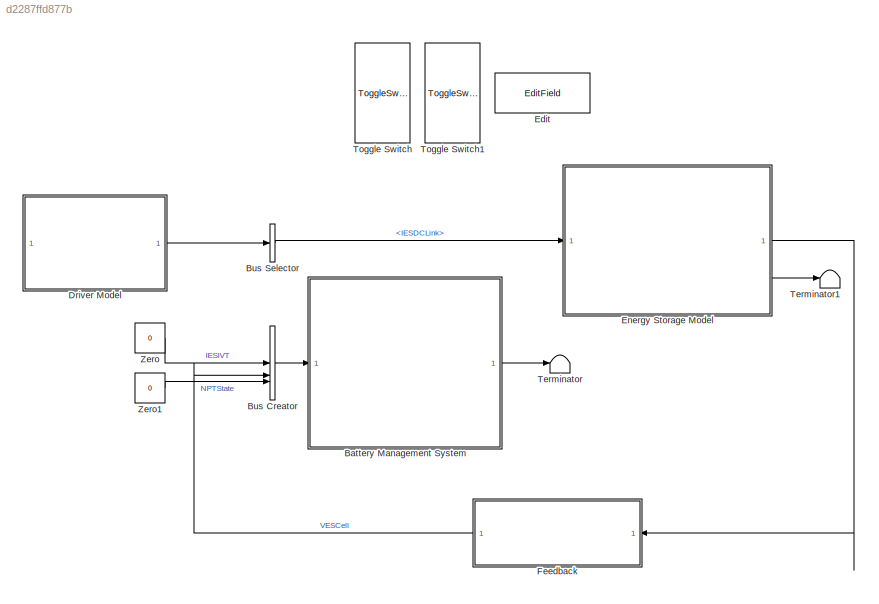
MODEL slx_d2287ffd877b
KIND model
CONFIG AbsTol = auto
CONFIG EnableMultiTasking = off
CONFIG FixedStep = tSimBattMgt
CONFIG MaxStep = auto
CONFIG MinStep = auto
CONFIG RelTol = 1e-3
CONFIG SampleTimeConstraint = Unconstrained
CONFIG SolverName = FixedStepDiscrete
CONFIG StartTime = 0.0
CONFIG StopTime = Inf
BLOCK [SubSystem] Battery Management System
  PermitHierarchicalResolution = None
  ReferencedSubsystem = BMS
BLOCK [BusCreator] Bus Creator
  DisplayOption = bar
  InheritFromInputs = off
  Inputs = 3
  OutDataTypeStr = Bus: BMSInputs_BUS
BLOCK [BusSelector] Bus Selector
  OutputSignals = IESDCLink
BLOCK [SubSystem] Driver Model
  PermitHierarchicalResolution = None
  ReferencedSubsystem = Driver
BLOCK [EditField] Edit
  Alignment = Center
  ShowInitialText = on
BLOCK [SubSystem] Energy Storage Model
  PermitHierarchicalResolution = None
  ReferencedSubsystem = EnergyStorage
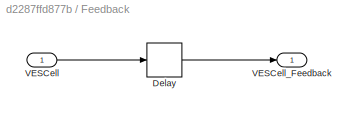
BLOCK [SubSystem] Feedback
BLOCK [Delay] Feedback/Delay
  DelayLength = 1
  InputPortMap = u0
BLOCK [Inport] Feedback/VESCell
BLOCK [Outport] Feedback/VESCell_Feedback
BLOCK [Terminator] Terminator
BLOCK [Terminator] Terminator1
BLOCK [ToggleSwitchBlock] Toggle Switch
BLOCK [ToggleSwitchBlock] Toggle Switch1
BLOCK [Constant] Zero
  OutDataTypeStr = Inherit: Inherit via back propagation
  SampleTime = tSimBattMgt
  Value = 0
BLOCK [Constant] Zero1
  OutDataTypeStr = Inherit: Inherit via back propagation
  SampleTime = tSimBattMgt
  Value = 0
LINE Battery Management System:1 -> Terminator:1
LINE Bus Creator:1 -> Battery Management System:1
LINE Bus Selector:1 -> Energy Storage Model:1
LINE Driver Model:1 -> Bus Selector:1
LINE Energy Storage Model:1 -> Feedback:1
LINE Energy Storage Model:2 -> Terminator1:1
LINE Feedback/Delay:1 -> Feedback/VESCell_Feedback:1
LINE Feedback/VESCell:1 -> Feedback/Delay:1
LINE Feedback:1 -> Bus Creator:2
LINE Zero1:1 -> Bus Creator:3
LINE Zero:1 -> Bus Creator:1
